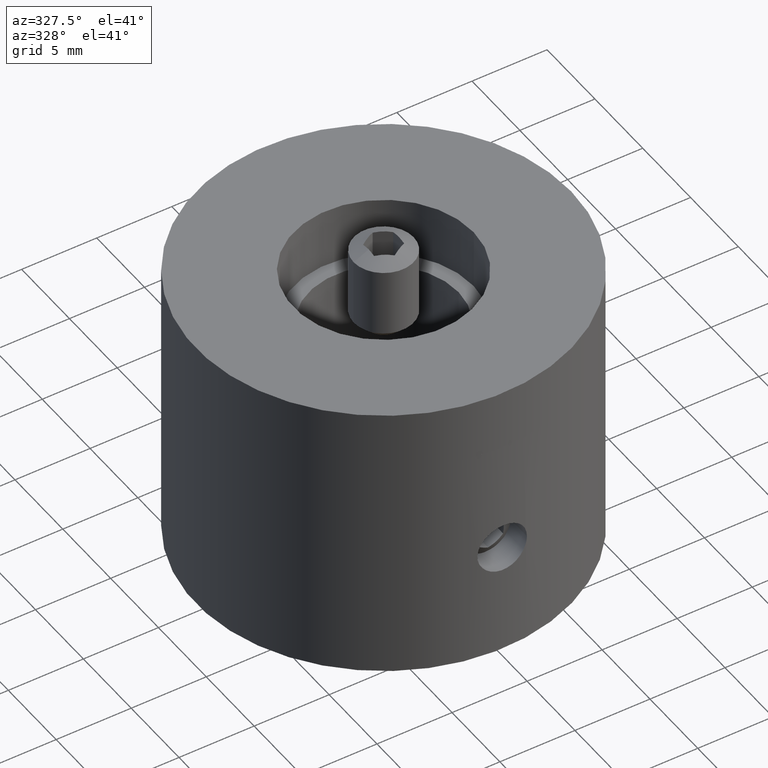
[diagram: clean part render]
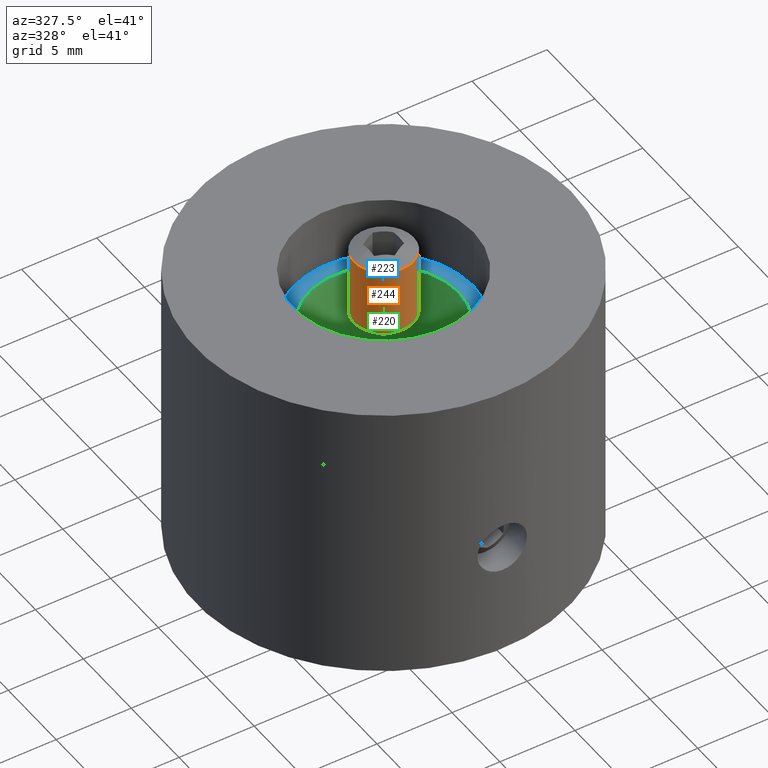
[diagram: same view with three faces highlighted in distinct colors, each labeled with its STEP entity id]
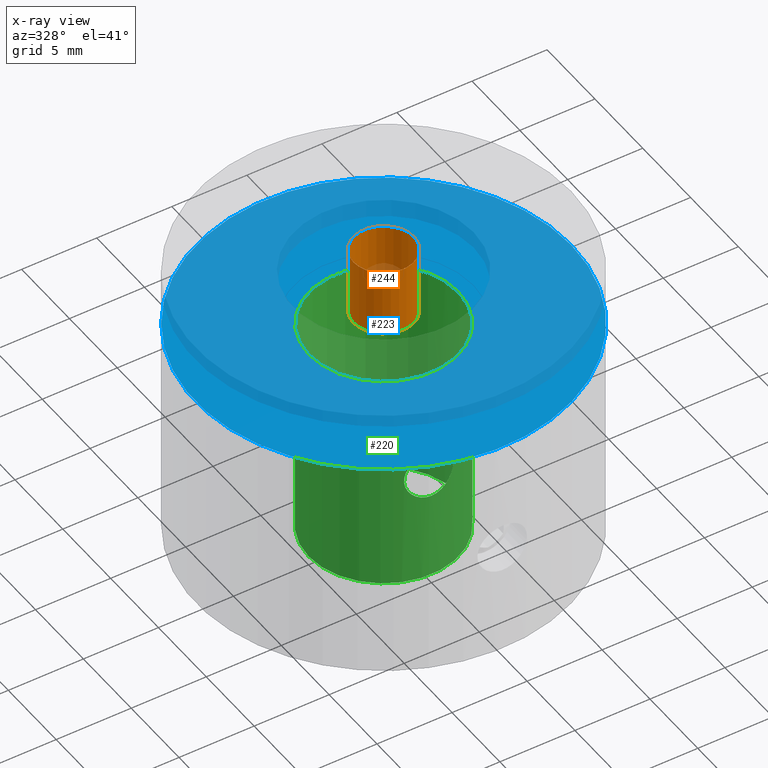
[diagram: x-ray of the same camera — body ghosted, the three highlighted faces saturated]
A machine part, auxiliary view with three faces highlighted in distinct colors.
The next image is the same camera in x-ray (body ghosted, the three faces saturated) — at least one of them is partly hidden behind the body in this view.
Their STEP definitions:

[orange] entity #244 — the highlighted cylindrical surface (bore or boss wall) has radius 2 mm, axis along (0, -0, 1).
#244 = ADVANCED_FACE( '', ( #301, #302 ), #303, .T. );
#301 = FACE_OUTER_BOUND( '', #361, .T. );
#302 = FACE_OUTER_BOUND( '', #362, .T. );
#303 = CYLINDRICAL_SURFACE( '', #363, 2.00000000000000 );
#361 = EDGE_LOOP( '', ( #487 ) );
#362 = EDGE_LOOP( '', ( #488 ) );
#363 = AXIS2_PLACEMENT_3D( '', #489, #490, #491 );
#487 = ORIENTED_EDGE( '', *, *, #509, .T. );
#488 = ORIENTED_EDGE( '', *, *, #530, .F. );
#489 = CARTESIAN_POINT( '', ( 0.000000000000000, 0.000000000000000, 0.000000000000000 ) );
#490 = DIRECTION( '', ( 0.000000000000000, -0.000000000000000, 1.00000000000000 ) );
#491 = DIRECTION( '', ( -1.00000000000000, 0.000000000000000, 0.000000000000000 ) );
#509 = EDGE_CURVE( '', #555, #555, #556, .T. );
#530 = EDGE_CURVE( '', #589, #589, #590, .T. );
#555 = VERTEX_POINT( '', #831 );
#556 = CIRCLE( '', #832, 2.00000000000000 );
#589 = VERTEX_POINT( '', #907 );
#590 = CIRCLE( '', #908, 2.00000000000000 );
#831 = CARTESIAN_POINT( '', ( -2.00000000000000, 0.000000000000000, 5.50000000000000 ) );
#832 = AXIS2_PLACEMENT_3D( '', #933, #934, #935 );
#907 = CARTESIAN_POINT( '', ( -2.00000000000000, 0.000000000000000, 1.00000000000000 ) );
#908 = AXIS2_PLACEMENT_3D( '', #951, #952, #953 );
#933 = CARTESIAN_POINT( '', ( 0.000000000000000, 0.000000000000000, 5.50000000000000 ) );
#934 = DIRECTION( '', ( -0.000000000000000, 0.000000000000000, -1.00000000000000 ) );
#935 = DIRECTION( '', ( -1.00000000000000, 0.000000000000000, 0.000000000000000 ) );
#951 = CARTESIAN_POINT( '', ( 0.000000000000000, 0.000000000000000, 1.00000000000000 ) );
#952 = DIRECTION( '', ( -0.000000000000000, 0.000000000000000, -1.00000000000000 ) );
#953 = DIRECTION( '', ( -1.00000000000000, 0.000000000000000, 0.000000000000000 ) );

[blue] entity #223 — the highlighted planar face has unit normal (0, 0, 1).
#223 = ADVANCED_FACE( '', ( #263, #264 ), #265, .T. );
#263 = FACE_OUTER_BOUND( '', #323, .T. );
#264 = FACE_BOUND( '', #324, .T. );
#265 = PLANE( '', #325 );
#323 = EDGE_LOOP( '', ( #391 ) );
#324 = EDGE_LOOP( '', ( #392 ) );
#325 = AXIS2_PLACEMENT_3D( '', #393, #394, #395 );
#391 = ORIENTED_EDGE( '', *, *, #500, .T. );
#392 = ORIENTED_EDGE( '', *, *, #504, .F. );
#393 = CARTESIAN_POINT( '', ( 0.000000000000000, 0.000000000000000, 0.000000000000000 ) );
#394 = DIRECTION( '', ( 0.000000000000000, 0.000000000000000, 1.00000000000000 ) );
#395 = DIRECTION( '', ( 1.00000000000000, 0.000000000000000, 0.000000000000000 ) );
#500 = EDGE_CURVE( '', #537, #537, #538, .T. );
#504 = EDGE_CURVE( '', #545, #545, #546, .T. );
#537 = VERTEX_POINT( '', #703 );
#538 = CIRCLE( '', #704, 12.5000000000000 );
#545 = VERTEX_POINT( '', #821 );
#546 = CIRCLE( '', #822, 5.00000000000000 );
#703 = CARTESIAN_POINT( '', ( 12.5000000000000, 0.000000000000000, 0.000000000000000 ) );
#704 = AXIS2_PLACEMENT_3D( '', #912, #913, #914 );
#821 = CARTESIAN_POINT( '', ( 5.00000000000000, 0.000000000000000, 0.000000000000000 ) );
#822 = AXIS2_PLACEMENT_3D( '', #918, #919, #920 );
#912 = CARTESIAN_POINT( '', ( 0.000000000000000, 0.000000000000000, 0.000000000000000 ) );
#913 = DIRECTION( '', ( 0.000000000000000, 0.000000000000000, 1.00000000000000 ) );
#914 = DIRECTION( '', ( 1.00000000000000, 0.000000000000000, 0.000000000000000 ) );
#918 = CARTESIAN_POINT( '', ( 0.000000000000000, 0.000000000000000, 0.000000000000000 ) );
#919 = DIRECTION( '', ( 0.000000000000000, 0.000000000000000, 1.00000000000000 ) );
#920 = DIRECTION( '', ( 1.00000000000000, 0.000000000000000, 0.000000000000000 ) );

[green] entity #220 — the highlighted cylindrical surface (bore or boss wall) has radius 5 mm, axis along (-0, 0, -1).
#220 = ADVANCED_FACE( '', ( #252, #253, #254, #255 ), #256, .F. );
#252 = FACE_BOUND( '', #312, .T. );
#253 = FACE_BOUND( '', #313, .T. );
#254 = FACE_OUTER_BOUND( '', #314, .T. );
#255 = FACE_OUTER_BOUND( '', #315, .T. );
#256 = CYLINDRICAL_SURFACE( '', #316, 5.00000000000000 );
#312 = EDGE_LOOP( '', ( #374 ) );
#313 = EDGE_LOOP( '', ( #375 ) );
#314 = EDGE_LOOP( '', ( #376 ) );
#315 = EDGE_LOOP( '', ( #377 ) );
#316 = AXIS2_PLACEMENT_3D( '', #378, #379, #380 );
#374 = ORIENTED_EDGE( '', *, *, #501, .T. );
#375 = ORIENTED_EDGE( '', *, *, #502, .T. );
#376 = ORIENTED_EDGE( '', *, *, #503, .F. );
#377 = ORIENTED_EDGE( '', *, *, #504, .T. );
#378 = CARTESIAN_POINT( '', ( 0.000000000000000, 0.000000000000000, -15.0000000000000 ) );
#379 = DIRECTION( '', ( -0.000000000000000, 0.000000000000000, -1.00000000000000 ) );
#380 = DIRECTION( '', ( 1.00000000000000, 0.000000000000000, 0.000000000000000 ) );
#501 = EDGE_CURVE( '', #539, #539, #540, .T. );
#502 = EDGE_CURVE( '', #541, #541, #542, .T. );
#503 = EDGE_CURVE( '', #543, #543, #544, .T. );
#504 = EDGE_CURVE( '', #545, #545, #546, .T. );
#539 = VERTEX_POINT( '', #705 );
#540 = B_SPLINE_CURVE_WITH_KNOTS( '', 3, ( #706, #707, #708, #709, #710, #711, #712, #713, #714, #715, #716, #717, #718, #719, #720, #721, #722, #723, #724, #725, #726, #727, #728, #729, #730, #731, #732, #733, #734, #735, #736, #737, #738, #739, #740, #741, #742, #743, #744, #745, #746, #747, #748, #749, #750, #751, #752, #753, #754, #755, #756, #757, #758, #759, #760, #761 ), .UNSPECIFIED., .T., .F., ( 2, 2, 2, 2, 2, 2, 2, 2, 2, 2, 2, 2, 2, 2, 2, 2, 2, 2, 2, 2, 2, 2, 2, 2, 2, 2, 2, 2, 2, 2 ), ( -0.000324657071432374, 0.000000000000000, 0.000324657071432377, 0.000649314142864755, 0.000973971214297132, 0.00129862828572951, 0.00194794242859426, 0.00227259950002664, 0.00259725657145902, 0.00292191364289140, 0.00324657071432377, 0.00389588485718853, 0.00422054192862091, 0.00454519900005328, 0.00486985607148566, 0.00519451314291804, 0.00584382728578279, 0.00616848435721517, 0.00649314142864755, 0.00714245557151229, 0.00746711264294467, 0.00779176971437704, 0.00811642678580942, 0.00844108385724179, 0.00909039800010654, 0.00941505507153891, 0.00973971214297129, 0.0100643692144037, 0.0103890262858360, 0.0107136833572684 ), .UNSPECIFIED. );
#541 = VERTEX_POINT( '', #762 );
#542 = B_SPLINE_CURVE_WITH_KNOTS( '', 3, ( #763, #764, #765, #766, #767, #768, #769, #770, #771, #772, #773, #774, #775, #776, #777, #778, #779, #780, #781, #782, #783, #784, #785, #786, #787, #788, #789, #790, #791, #792, #793, #794, #795, #796, #797, #798, #799, #800, #801, #802, #803, #804, #805, #806, #807, #808, #809, #810, #811, #812, #813, #814, #815, #816, #817, #818 ), .UNSPECIFIED., .T., .F., ( 2, 2, 2, 2, 2, 2, 2, 2, 2, 2, 2, 2, 2, 2, 2, 2, 2, 2, 2, 2, 2, 2, 2, 2, 2, 2, 2, 2, 2, 2 ), ( -0.000324666240844053, 0.000000000000000, 0.000324666240844053, 0.000649332481688105, 0.000973998722532158, 0.00129866496337621, 0.00194799744506432, 0.00227266368590837, 0.00259732992675242, 0.00292199616759647, 0.00324666240844053, 0.00389599489012863, 0.00422066113097268, 0.00454532737181673, 0.00486999361266078, 0.00519465985350483, 0.00584399233519294, 0.00616865857603699, 0.00649332481688104, 0.00714265729856914, 0.00746732353941319, 0.00779198978025724, 0.00811665602110129, 0.00844132226194535, 0.00909065474363345, 0.00941532098447751, 0.00973998722532156, 0.0100646534661656, 0.0103893197070097, 0.0107139859478537 ), .UNSPECIFIED. );
#543 = VERTEX_POINT( '', #819 );
#544 = CIRCLE( '', #820, 5.00000000000000 );
#545 = VERTEX_POINT( '', #821 );
#546 = CIRCLE( '', #822, 5.00000000000000 );
#705 = CARTESIAN_POINT( '', ( 1.65000000000000, -4.71990466005406, -7.50000000000000 ) );
#706 = CARTESIAN_POINT( '', ( 1.65000000000000, -4.71990466005406, -7.60984284401990 ) );
#707 = CARTESIAN_POINT( '', ( 1.65000000000000, -4.71990466005406, -7.39015715598009 ) );
#708 = CARTESIAN_POINT( '', ( 1.63914246186063, -4.72373937000455, -7.28231638102118 ) );
#709 = CARTESIAN_POINT( '', ( 1.59675763418524, -4.73823455557833, -7.07041970957995 ) );
#710 = CARTESIAN_POINT( '', ( 1.56467085607757, -4.74907422861496, -6.96523957759678 ) );
#711 = CARTESIAN_POINT( '', ( 1.48161631412132, -4.77563755057719, -6.76584967822866 ) );
#712 = CARTESIAN_POINT( '', ( 1.43090816834928, -4.79128097869830, -6.67140496755757 ) );
#713 = CARTESIAN_POINT( '', ( 1.31123387755562, -4.82540540487897, -6.49266012072021 ) );
#714 = CARTESIAN_POINT( '', ( 1.24215855603374, -4.84386979673163, -6.40869415662239 ) );
#715 = CARTESIAN_POINT( '', ( 1.01558268518194, -4.89823659632991, -6.18215437245847 ) );
#716 = CARTESIAN_POINT( '', ( 0.832784277326460, -4.93420991132285, -6.05947698965034 ) );
#717 = CARTESIAN_POINT( '', ( 0.535369292542457, -4.97225994855381, -5.93557877488835 ) );
#718 = CARTESIAN_POINT( '', ( 0.430551626182311, -4.98257513540077, -5.90345275686913 ) );
#719 = CARTESIAN_POINT( '', ( 0.217181257229954, -4.99642492030354, -5.86074098939032 ) );
#720 = CARTESIAN_POINT( '', ( 0.109589735836817, -4.99997611963850, -5.85007236474598 ) );
#721 = CARTESIAN_POINT( '', ( -0.107399725579996, -5.00002364055425, -5.84992836194272 ) );
#722 = CARTESIAN_POINT( '', ( -0.217589103969318, -4.99639571357585, -5.86083136172317 ) );
#723 = CARTESIAN_POINT( '', ( -0.429888031933363, -4.98262093930551, -5.90331120036591 ) );
#724 = CARTESIAN_POINT( '', ( -0.533169141922576, -4.97252229153557, -5.93473414663176 ) );
#725 = CARTESIAN_POINT( '', ( -0.834407577641079, -4.93404023992932, -6.06001038307514 ) );
#726 = CARTESIAN_POINT( '', ( -1.01523288364966, -4.89833627544838, -6.18168050813238 ) );
#727 = CARTESIAN_POINT( '', ( -1.24304942340763, -4.84364812407138, -6.40964723431524 ) );
#728 = CARTESIAN_POINT( '', ( -1.31080292929161, -4.82552083813053, -6.49213289168989 ) );
#729 = CARTESIAN_POINT( '', ( -1.43023475827665, -4.79148037822223, -6.67028380534656 ) );
#730 = CARTESIAN_POINT( '', ( -1.48203946150515, -4.77550425874862, -6.76677131110006 ) );
#731 = CARTESIAN_POINT( '', ( -1.56467612954795, -4.74907048804370, -6.96534694865995 ) );
#732 = CARTESIAN_POINT( '', ( -1.59622837391478, -4.73841413885257, -7.06825322426624 ) );
#733 = CARTESIAN_POINT( '', ( -1.63911496821324, -4.72375017268567, -7.28170565507452 ) );
#734 = CARTESIAN_POINT( '', ( -1.64995491767038, -4.71992042008356, -7.39112555080607 ) );
#735 = CARTESIAN_POINT( '', ( -1.65008973761372, -4.71987328928304, -7.71569274895013 ) );
#736 = CARTESIAN_POINT( '', ( -1.60638865883120, -4.73572155914972, -7.93414288015783 ) );
#737 = CARTESIAN_POINT( '', ( -1.48230748945050, -4.77542147972021, -8.23272139836521 ) );
#738 = CARTESIAN_POINT( '', ( -1.43053015294484, -4.79139170588078, -8.32920559661750 ) );
#739 = CARTESIAN_POINT( '', ( -1.31117319942413, -4.82541975778060, -8.50738437602440 ) );
#740 = CARTESIAN_POINT( '', ( -1.24336472234906, -4.84357094067614, -8.59002546681368 ) );
#741 = CARTESIAN_POINT( '', ( -1.01487278362588, -4.89842570563578, -8.81870339250062 ) );
#742 = CARTESIAN_POINT( '', ( -0.834890584362388, -4.93395228801696, -8.93969010118176 ) );
#743 = CARTESIAN_POINT( '', ( -0.533883631712932, -4.97244408061672, -9.06501780712343 ) );
#744 = CARTESIAN_POINT( '', ( -0.430753647598112, -4.98254113281938, -9.09644007044165 ) );
#745 = CARTESIAN_POINT( '', ( -0.218930159966146, -4.99633209767058, -9.13897504205769 ) );
#746 = CARTESIAN_POINT( '', ( -0.108873703328001, -4.99999698521520, -9.14999086428846 ) );
#747 = CARTESIAN_POINT( '', ( 0.108596620425361, -5.00000301094606, -9.15000912407898 ) );
#748 = CARTESIAN_POINT( '', ( 0.216271051430784, -4.99646296184009, -9.13937402207826 ) );
#749 = CARTESIAN_POINT( '', ( 0.429509801967291, -4.98266360762402, -9.09682237019840 ) );
#750 = CARTESIAN_POINT( '', ( 0.534588579229947, -4.97234891391611, -9.06470542486823 ) );
#751 = CARTESIAN_POINT( '', ( 0.832742101426960, -4.93423705101147, -8.94062231522759 ) );
#752 = CARTESIAN_POINT( '', ( 1.01543475257376, -4.89827371703931, -8.81800633514497 ) );
#753 = CARTESIAN_POINT( '', ( 1.24230659346456, -4.84383346263862, -8.59115142711205 ) );
#754 = CARTESIAN_POINT( '', ( 1.31153768902027, -4.82532076286927, -8.50691723344733 ) );
#755 = CARTESIAN_POINT( '', ( 1.43090097578797, -4.79128103661088, -8.32857457251771 ) );
#756 = CARTESIAN_POINT( '', ( 1.48155885079314, -4.77565536551578, -8.23426232799146 ) );
#757 = CARTESIAN_POINT( '', ( 1.56461113709011, -4.74909389128460, -8.03492970039484 ) );
#758 = CARTESIAN_POINT( '', ( 1.59672804550862, -4.73824458192247, -7.92969669660919 ) );
#759 = CARTESIAN_POINT( '', ( 1.63913503667331, -4.72374200194945, -7.71775223062141 ) );
#760 = CARTESIAN_POINT( '', ( 1.65000000000000, -4.71990466005406, -7.60984284401990 ) );
#761 = CARTESIAN_POINT( '', ( 1.65000000000000, -4.71990466005406, -7.39015715598009 ) );
#762 = CARTESIAN_POINT( '', ( 5.00000000000000, 0.000000000000000, -9.15000000000000 ) );
#763 = CARTESIAN_POINT( '', ( 5.00000000000000, -0.109835536220147, -9.15000000000000 ) );
#764 = CARTESIAN_POINT( '', ( 5.00000000000000, 0.109835536220146, -9.15000000000000 ) );
#765 = CARTESIAN_POINT( '', ( 4.99638763625927, 0.217688094822252, -9.13914354679063 ) );
#766 = CARTESIAN_POINT( '', ( 4.98263907752836, 0.429633962204031, -9.09674491767895 ) );
#767 = CARTESIAN_POINT( '', ( 4.97232767456793, 0.534855307893066, -9.06464274572347 ) );
#768 = CARTESIAN_POINT( '', ( 4.94680087144427, 0.734352668636630, -8.98152059728939 ) );
#769 = CARTESIAN_POINT( '', ( 4.93166204488017, 0.828842250047667, -8.93076789090967 ) );
#770 = CARTESIAN_POINT( '', ( 4.89826049237377, 1.00762798156162, -8.81101566882179 ) );
#771 = CARTESIAN_POINT( '', ( 4.87999899290080, 1.09162197388272, -8.74188149245731 ) );
#772 = CARTESIAN_POINT( '', ( 4.82562647798528, 1.31812135756645, -8.51522844099916 ) );
#773 = CARTESIAN_POINT( '', ( 4.78874071107988, 1.44064944240953, -8.33253363271900 ) );
#774 = CARTESIAN_POINT( '', ( 4.74914509275229, 1.56444814278200, -8.03527822198063 ) );
#775 = CARTESIAN_POINT( '', ( 4.73830359005845, 1.59655512217687, -7.93051707068544 ) );
#776 = CARTESIAN_POINT( '', ( 4.72370050753533, 1.63925674768184, -7.71718775628551 ) );
#777 = CARTESIAN_POINT( '', ( 4.71993113326332, 1.64992427208637, -7.60961842992412 ) );
#778 = CARTESIAN_POINT( '', ( 4.71987846502802, 1.65007493215697, -7.39267329285808 ) );
#779 = CARTESIAN_POINT( '', ( 4.72372784040480, 1.63917627600394, -7.28247369567573 ) );
#780 = CARTESIAN_POINT( '', ( 4.73825079285074, 1.59671005448043, -7.07019357984295 ) );
#781 = CARTESIAN_POINT( '', ( 4.74886821385391, 1.56530191977704, -6.96694763823385 ) );
#782 = CARTESIAN_POINT( '', ( 4.78891789519195, 1.44011910741734, -6.66584375670982 ) );
#783 = CARTESIAN_POINT( '', ( 4.82553797434980, 1.31855584187964, -6.48508180242912 ) );
#784 = CARTESIAN_POINT( '', ( 4.88021561330725, 1.09068654073655, -6.25724500249043 ) );
#785 = CARTESIAN_POINT( '', ( 4.89813662733830, 1.00820396732400, -6.18945176451320 ) );
#786 = CARTESIAN_POINT( '', ( 4.93146357862007, 0.829990742445133, -6.06992053202600 ) );
#787 = CARTESIAN_POINT( '', ( 4.94692765916273, 0.733441808669379, -6.01806139762505 ) );
#788 = CARTESIAN_POINT( '', ( 4.97232986094084, 0.534757800961844, -5.93535531118925 ) );
#789 = CARTESIAN_POINT( '', ( 4.98246930232007, 0.431795178860569, -5.90378191972780 ) );
#790 = CARTESIAN_POINT( '', ( 4.99637957981227, 0.218262501323627, -5.86087806530720 ) );
#791 = CARTESIAN_POINT( '', ( 4.99998552098559, 0.108867850517933, -5.85004387580442 ) );
#792 = CARTESIAN_POINT( '', ( 5.00002882455228, -0.215734627295231, -5.84991265286552 ) );
#793 = CARTESIAN_POINT( '', ( 4.98515344017731, -0.434216836233566, -5.89361895302897 ) );
#794 = CARTESIAN_POINT( '', ( 4.94701086894016, -0.732910794935545, -6.01778279294122 ) );
#795 = CARTESIAN_POINT( '', ( 4.93155325174304, -0.829459497867047, -6.06961279887998 ) );
#796 = CARTESIAN_POINT( '', ( 4.89823911244812, -1.00770736360446, -6.18907037829364 ) );
#797 = CARTESIAN_POINT( '', ( 4.88029505191802, -1.09034869156518, -6.25692003398851 ) );
#798 = CARTESIAN_POINT( '', ( 4.82544979572954, -1.31893689037321, -6.48543715640651 ) );
#799 = CARTESIAN_POINT( '', ( 4.78900740359890, -1.43982313873576, -6.66537125733255 ) );
#800 = CARTESIAN_POINT( '', ( 4.74895189866938, -1.56504840492742, -6.96621873162731 ) );
#801 = CARTESIAN_POINT( '', ( 4.73833847797232, -1.59645019954891, -7.06929452586912 ) );
#802 = CARTESIAN_POINT( '', ( 4.72380037409615, -1.63896760101044, -7.28103505320678 ) );
#803 = CARTESIAN_POINT( '', ( 4.71990866955540, -1.64998853062776, -7.39108189098146 ) );
#804 = CARTESIAN_POINT( '', ( 4.71990065695902, -1.65001145104670, -7.60857033245831 ) );
#805 = CARTESIAN_POINT( '', ( 4.72365834343302, -1.63937700238736, -7.71623240631197 ) );
#806 = CARTESIAN_POINT( '', ( 4.73820482184360, -1.59684694560844, -7.92941034197728 ) );
#807 = CARTESIAN_POINT( '', ( 4.74904714852633, -1.56474738962517, -8.03445665013771 ) );
#808 = CARTESIAN_POINT( '', ( 4.78871320555187, -1.44074934809374, -8.33249896866496 ) );
#809 = CARTESIAN_POINT( '', ( 4.82558907262399, -1.31828279837326, -8.51507753483999 ) );
#810 = CARTESIAN_POINT( '', ( 4.88003247062558, -1.09147970398846, -8.74201853461902 ) );
#811 = CARTESIAN_POINT( '', ( 4.89833906802602, -1.00722776289552, -8.81130283173932 ) );
#812 = CARTESIAN_POINT( '', ( 4.93165924772445, -0.828836809047125, -8.93075239886000 ) );
#813 = CARTESIAN_POINT( '', ( 4.94678192412641, -0.734476668026768, -8.98145734709692 ) );
#814 = CARTESIAN_POINT( '', ( 4.97230806618776, -0.535032593085342, -9.06458044583188 ) );
#815 = CARTESIAN_POINT( '', ( 4.98262901639659, -0.429757028653539, -9.09671366192997 ) );
#816 = CARTESIAN_POINT( '', ( 4.99638506420792, -0.217759750354423, -9.13913584336275 ) );
#817 = CARTESIAN_POINT( '', ( 5.00000000000000, -0.109835536220147, -9.15000000000000 ) );
#818 = CARTESIAN_POINT( '', ( 5.00000000000000, 0.109835536220146, -9.15000000000000 ) );
#819 = CARTESIAN_POINT( '', ( 5.00000000000000, 0.000000000000000, -15.0000000000000 ) );
#820 = AXIS2_PLACEMENT_3D( '', #915, #916, #917 );
#821 = CARTESIAN_POINT( '', ( 5.00000000000000, 0.000000000000000, 0.000000000000000 ) );
#822 = AXIS2_PLACEMENT_3D( '', #918, #919, #920 );
#915 = CARTESIAN_POINT( '', ( 0.000000000000000, 0.000000000000000, -15.0000000000000 ) );
#916 = DIRECTION( '', ( 0.000000000000000, 0.000000000000000, 1.00000000000000 ) );
#917 = DIRECTION( '', ( 1.00000000000000, 0.000000000000000, 0.000000000000000 ) );
#918 = CARTESIAN_POINT( '', ( 0.000000000000000, 0.000000000000000, 0.000000000000000 ) );
#919 = DIRECTION( '', ( 0.000000000000000, 0.000000000000000, 1.00000000000000 ) );
#920 = DIRECTION( '', ( 1.00000000000000, 0.000000000000000, 0.000000000000000 ) );